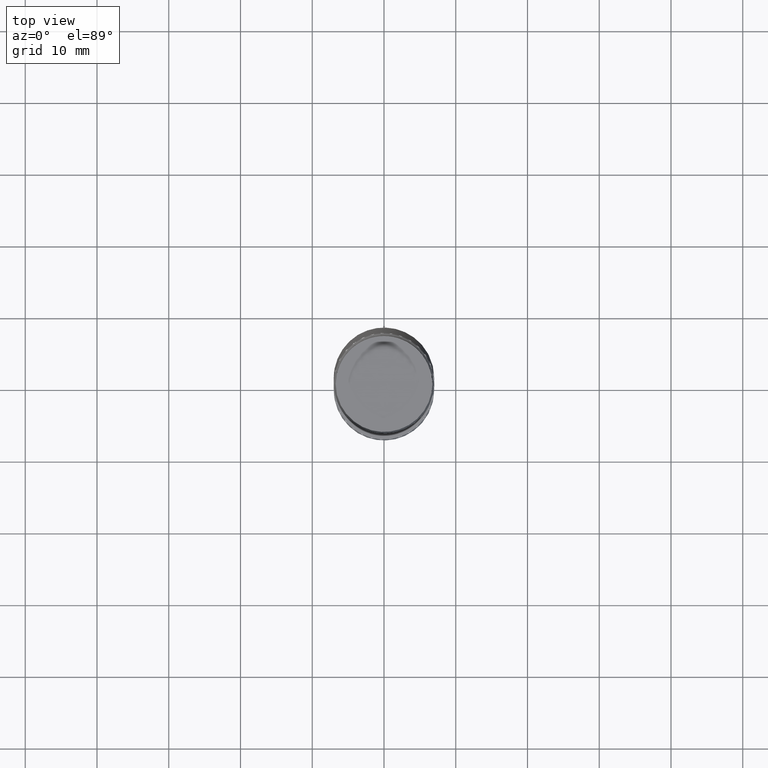
[diagram: clean part render]
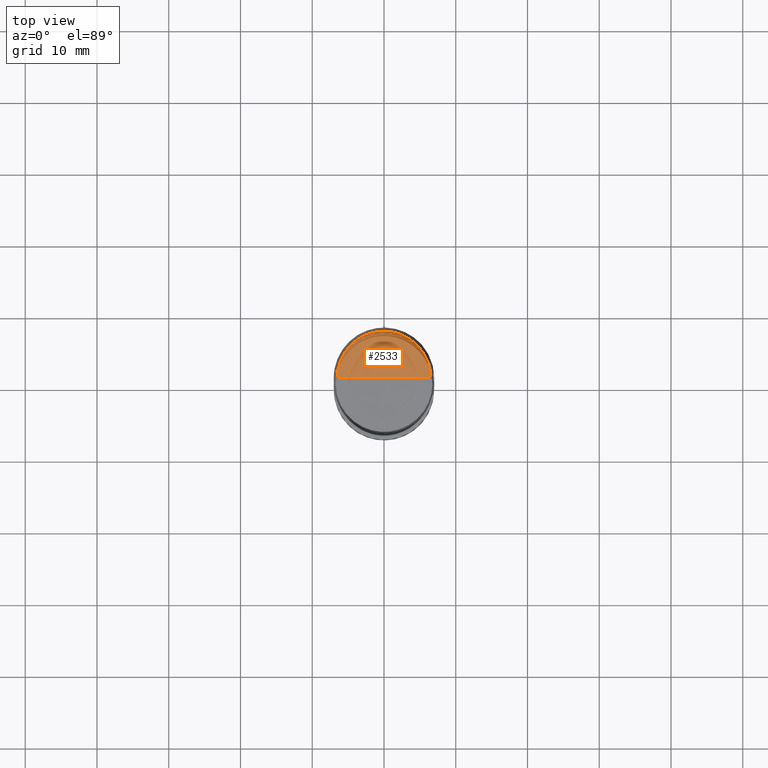
[diagram: same view with one face highlighted and labeled with its STEP entity id]
A machine part, top view. The second image highlights one B-rep face of the part: STEP entity #2533.
In plain terms, the highlighted face is a freeform B-spline surface patch.
Its self-contained STEP definition (entity closure, byte-faithful):
#2246=CARTESIAN_POINT('',(6.5,0.0,45.06699011));
#2247=CARTESIAN_POINT('',(6.5,6.5,45.06699011));
#2248=CARTESIAN_POINT('',(0.0,6.5,45.06699011));
#2249=CARTESIAN_POINT('',(-6.5,6.5,45.06699011));
#2250=CARTESIAN_POINT('',(-6.5,0.0,45.06699011));
#2251=CARTESIAN_POINT('',(0.0,0.0,45.06699011));
#2518=(
BOUNDED_SURFACE()
B_SPLINE_SURFACE(1,2,(
(#2246,#2247,#2248,#2249,#2250),
(#2251,#2251,#2251,#2251,#2251)
), .UNSPECIFIED.,.F.,.F.,.F.)
B_SPLINE_SURFACE_WITH_KNOTS((2,2),(3,2,3),(
0.0,1.0),(
0.0,0.5,1.0), .UNSPECIFIED.)
GEOMETRIC_REPRESENTATION_ITEM()
RATIONAL_B_SPLINE_SURFACE(((1.0,0.707106781187,1.0,0.707106781187,1.0),
(1.0,0.707106781187,1.0,0.707106781187,1.0)
))
REPRESENTATION_ITEM('')
SURFACE()
);
#2519=(
BOUNDED_CURVE()
B_SPLINE_CURVE(1,(#2251,#2246),.UNSPECIFIED.,.F.,.F.)
B_SPLINE_CURVE_WITH_KNOTS((2,2),
(0.0,1.0),.UNSPECIFIED.)
CURVE()
GEOMETRIC_REPRESENTATION_ITEM()
RATIONAL_B_SPLINE_CURVE((1.0,1.0))
REPRESENTATION_ITEM('')
);
#2520=(
BOUNDED_CURVE()
B_SPLINE_CURVE(2,(#2246,#2247,#2248,#2249,#2250),.UNSPECIFIED.,.F.,.F.)
B_SPLINE_CURVE_WITH_KNOTS((3,2,3),
(0.0,0.5,1.0),.UNSPECIFIED.)
CURVE()
GEOMETRIC_REPRESENTATION_ITEM()
RATIONAL_B_SPLINE_CURVE((1.0,0.707106781187,1.0,0.707106781187,1.0))
REPRESENTATION_ITEM('')
);
#2521=(
BOUNDED_CURVE()
B_SPLINE_CURVE(1,(#2250,#2251),.UNSPECIFIED.,.F.,.F.)
B_SPLINE_CURVE_WITH_KNOTS((2,2),
(0.0,1.0),.UNSPECIFIED.)
CURVE()
GEOMETRIC_REPRESENTATION_ITEM()
RATIONAL_B_SPLINE_CURVE((1.0,1.0))
REPRESENTATION_ITEM('')
);
#2522=VERTEX_POINT('',#2246);
#2523=VERTEX_POINT('',#2250);
#2524=VERTEX_POINT('',#2251);
#2525=EDGE_CURVE('',#2524,#2522,#2519,.T.);
#2526=EDGE_CURVE('',#2522,#2523,#2520,.T.);
#2527=EDGE_CURVE('',#2523,#2524,#2521,.T.);
#2528=ORIENTED_EDGE('',*,*,#2525,.T.);
#2529=ORIENTED_EDGE('',*,*,#2526,.T.);
#2530=ORIENTED_EDGE('',*,*,#2527,.T.);
#2531=EDGE_LOOP('',(#2528,#2529,#2530));
#2532=FACE_OUTER_BOUND('',#2531,.T.);
#2533=ADVANCED_FACE('',(#2532),#2518,.T.);